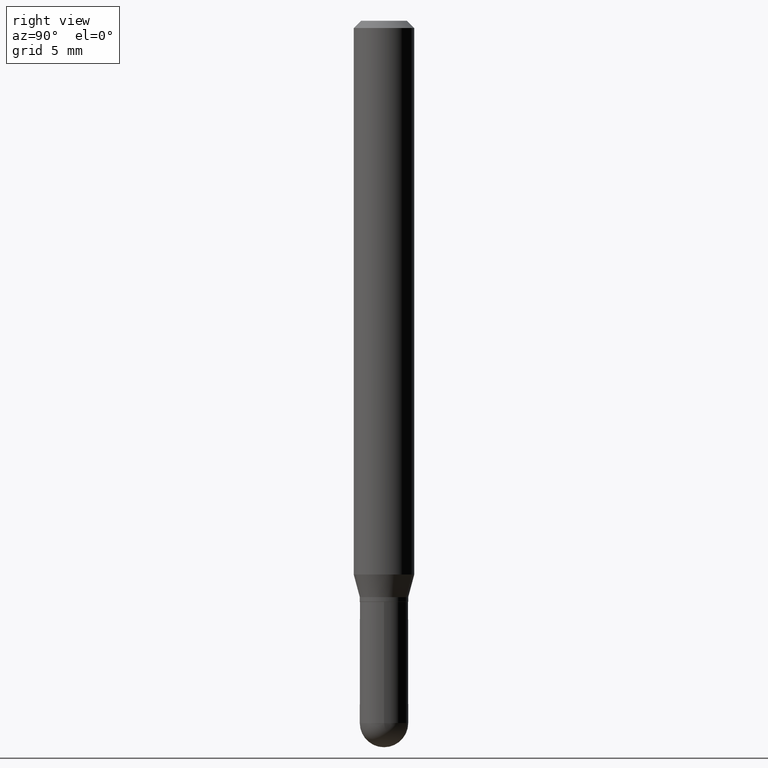
[diagram: clean part render]
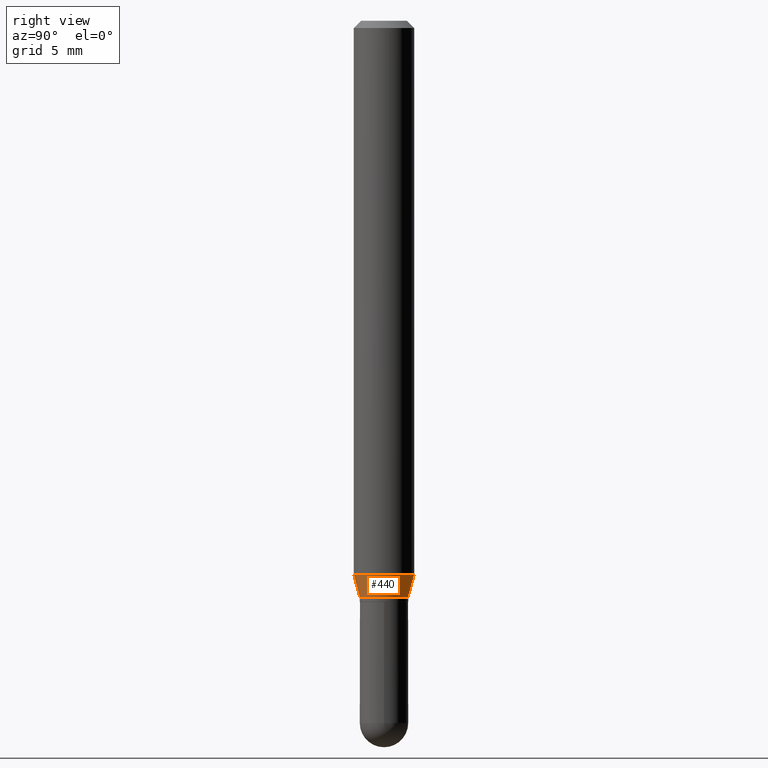
[diagram: same view with one face highlighted and labeled with its STEP entity id]
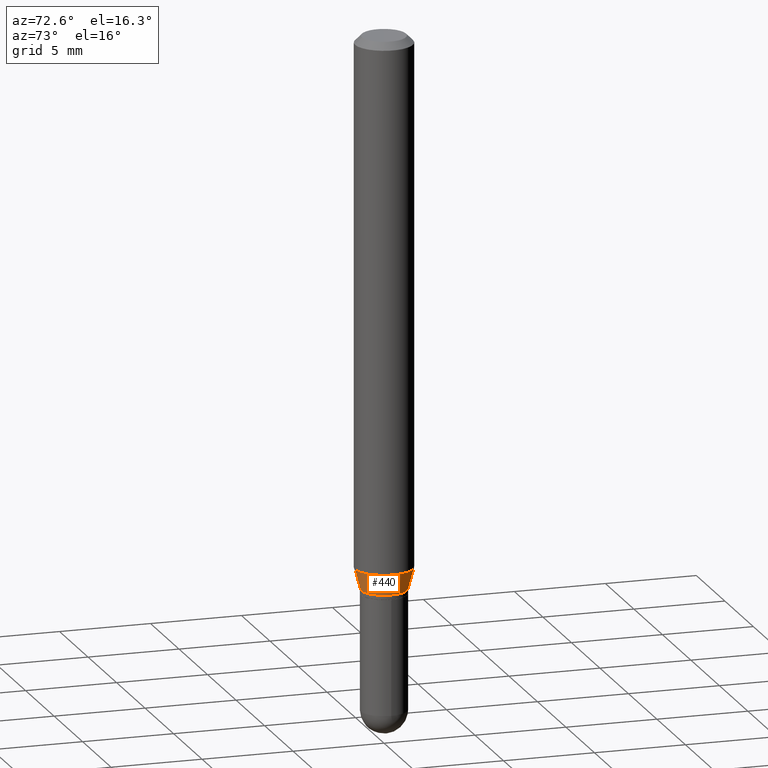
[diagram: same view with one face highlighted and labeled with its STEP entity id]
A machine part, right view. The second image highlights one B-rep face of the part: STEP entity #440.
A second angle (auxiliary view) of the same face is appended — the face is thin or edge-on in the first view.
In plain terms, the highlighted conical surface has half-angle 15 deg.
Its self-contained STEP definition (entity closure, byte-faithful):
#39 = CARTESIAN_POINT ( 'NONE',  ( 3.552713678800795963E-16, 0.04999999999999590883, -1.190000000000000391 ) ) ;
#43 = DIRECTION ( 'NONE',  ( -2.445402867913384779E-29, 3.491575766201267725E-15, 1.000000000000000000 ) ) ;
#70 = CARTESIAN_POINT ( 'NONE',  ( 2.910029412816928193E-29, -4.154975161779508885E-15, -1.190000000000000169 ) ) ;
#101 = AXIS2_PLACEMENT_3D ( 'NONE', #316, #430, #437 ) ;
#119 = ORIENTED_EDGE ( 'NONE', *, *, #192, .T. ) ;
#123 = CONICAL_SURFACE ( 'NONE', #242, 0.05000000000000006523, 0.2617993877991506846 ) ;
#153 = VERTEX_POINT ( 'NONE', #250 ) ;
#161 = LINE ( 'NONE', #404, #482 ) ;
#168 = DIRECTION ( 'NONE',  ( 1.839019923739603076E-15, 0.2588190451025253469, 0.9659258262890670910 ) ) ;
#169 = VERTEX_POINT ( 'NONE', #434 ) ;
#171 = DIRECTION ( 'NONE',  ( -2.445402867913384779E-29, 3.491575766201267725E-15, 1.000000000000000000 ) ) ;
#177 = DIRECTION ( 'NONE',  ( -6.982962677686265133E-15, -1.000000000000000000, 2.731847993664259669E-15 ) ) ;
#178 = EDGE_CURVE ( 'NONE', #442, #153, #161, .T. ) ;
#180 = EDGE_LOOP ( 'NONE', ( #190, #119, #196, #215 ) ) ;
#190 = ORIENTED_EDGE ( 'NONE', *, *, #233, .T. ) ;
#192 = EDGE_CURVE ( 'NONE', #169, #503, #254, .T. ) ;
#196 = ORIENTED_EDGE ( 'NONE', *, *, #283, .F. ) ;
#203 = DIRECTION ( 'NONE',  ( -1.807323732225332900E-15, -0.2588190451025185745, 0.9659258262890689783 ) ) ;
#206 = CARTESIAN_POINT ( 'NONE',  ( -3.491481338842845914E-16, -0.05000000000000422162, -1.189999999999999947 ) ) ;
#215 = ORIENTED_EDGE ( 'NONE', *, *, #178, .F. ) ;
#233 = EDGE_CURVE ( 'NONE', #442, #169, #284, .T. ) ;
#242 = AXIS2_PLACEMENT_3D ( 'NONE', #258, #43, #494 ) ;
#250 = CARTESIAN_POINT ( 'NONE',  ( -4.364351673553637142E-16, -0.06250000000000399680, -1.143349364905389409 ) ) ;
#254 = LINE ( 'NONE', #39, #292 ) ;
#258 = CARTESIAN_POINT ( 'NONE',  ( 2.910029412816928193E-29, -4.154975161779508885E-15, -1.190000000000000169 ) ) ;
#262 = AXIS2_PLACEMENT_3D ( 'NONE', #70, #171, #177 ) ;
#283 = EDGE_CURVE ( 'NONE', #153, #503, #390, .T. ) ;
#284 = CIRCLE ( 'NONE', #262, 0.05000000000000006523 ) ;
#292 = VECTOR ( 'NONE', #168, 39.37007874015748143 ) ;
#316 = CARTESIAN_POINT ( 'NONE',  ( 2.795949815966586689E-29, -3.992090934805268483E-15, -1.143349364905389631 ) ) ;
#367 = CARTESIAN_POINT ( 'NONE',  ( 4.440892098500904235E-16, 0.06249999999999599626, -1.143349364905389853 ) ) ;
#390 = CIRCLE ( 'NONE', #101, 0.06250000000000000000 ) ;
#404 = CARTESIAN_POINT ( 'NONE',  ( -3.491481338842845914E-16, -0.05000000000000422162, -1.189999999999999947 ) ) ;
#408 = FACE_OUTER_BOUND ( 'NONE', #180, .T. ) ;
#430 = DIRECTION ( 'NONE',  ( -2.445402867913384779E-29, 3.491575766201267725E-15, 1.000000000000000000 ) ) ;
#434 = CARTESIAN_POINT ( 'NONE',  ( 3.996802888650851578E-16, 0.04999999999999590883, -1.190000000000000391 ) ) ;
#437 = DIRECTION ( 'NONE',  ( -6.982962677686265922E-15, -1.000000000000000000, 4.370956789862821150E-15 ) ) ;
#440 = ADVANCED_FACE ( 'NONE', ( #408 ), #123, .T. ) ;
#442 = VERTEX_POINT ( 'NONE', #206 ) ;
#482 = VECTOR ( 'NONE', #203, 39.37007874015748143 ) ;
#494 = DIRECTION ( 'NONE',  ( -6.982962677686265133E-15, -1.000000000000000000, 2.731847993664259669E-15 ) ) ;
#503 = VERTEX_POINT ( 'NONE', #367 ) ;